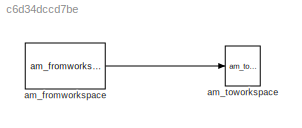
MODEL slx_c6d34dccd7be
KIND model
CONFIG AbsTol = auto
CONFIG EnableMultiTasking = off
CONFIG FixedStep = auto
CONFIG MaxStep = auto
CONFIG MinStep = auto
CONFIG RelTol = 1e-3
CONFIG SampleTimeConstraint = Unconstrained
CONFIG SolverName = VariableStepAuto
CONFIG StartTime = 0.0
CONFIG StopTime = 10.0
BLOCK [Reference] am_fromworkspace  REF=NSA_DEVS_SOURCES/am_fromworkspace
  SourceBlock = NSA_DEVS_SOURCES/am_fromworkspace
  SourceProductName = Sources
  SourceType = Fromworkspace
BLOCK [Reference] am_toworkspace  REF=NSA_DEVS_SINKS/am_toworkspace
  SourceBlock = NSA_DEVS_SINKS/am_toworkspace
  SourceProductName = Sinks
  SourceType = ToWorkspace
LINE am_fromworkspace:1 -> am_toworkspace:1
